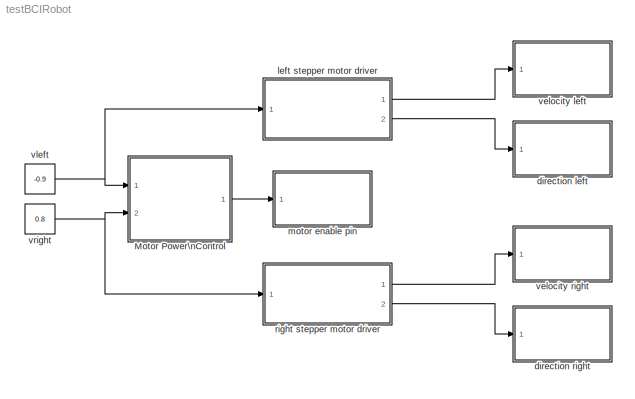
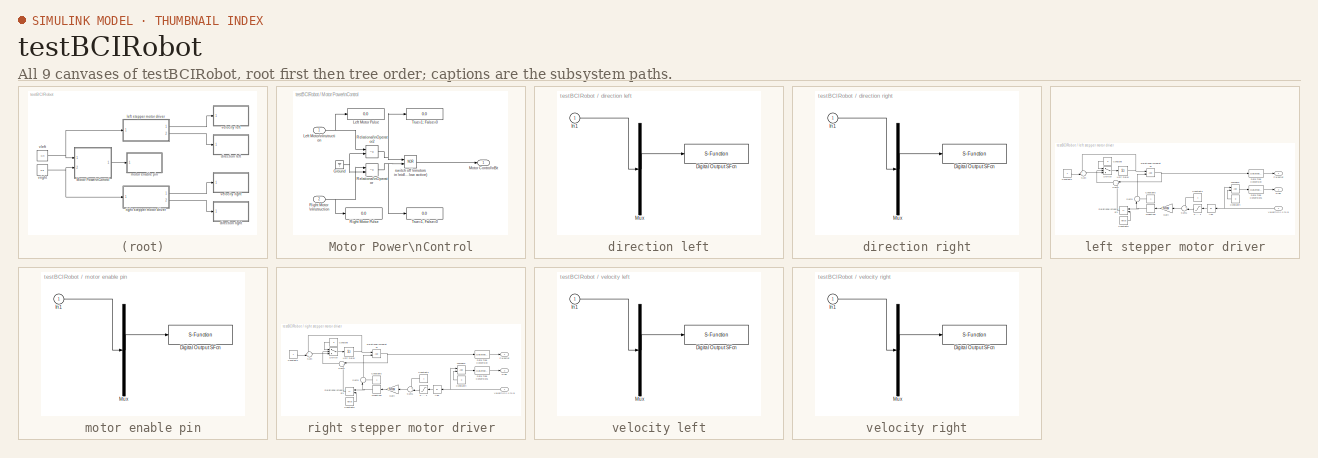
[diagram: thumbnail index - all 9 canvases of the model, root first then tree order]
MODEL testBCIRobot
KIND model
BLOCK [SubSystem] Motor Power\nControl
  Ports = [2, 1]
  RequestExecContextInheritance = off
  SID = 1
BLOCK [Ground] Motor Power\nControl/Ground
  SID = 4
BLOCK [Display] Motor Power\nControl/Left Motor Pulse
  Decimation = 1
  Ports = [1]
  SID = 5
BLOCK [Inport] Motor Power\nControl/Left Motor\nInstruction
  IconDisplay = Port number
  SID = 2
BLOCK [Outport] Motor Power\nControl/Motor Control\nBit
  IconDisplay = Port number
  SID = 12
BLOCK [RelationalOperator] Motor Power\nControl/Relational\nOperator
  InputSameDT = off
  Operator = ~=
  Ports = [2, 1]
  SID = 6
BLOCK [RelationalOperator] Motor Power\nControl/Relational\nOperator2
  InputSameDT = off
  Operator = ~=
  Ports = [2, 1]
  SID = 7
BLOCK [Display] Motor Power\nControl/Right Motor Pulse
  Decimation = 1
  Ports = [1]
  SID = 8
BLOCK [Inport] Motor Power\nControl/Right Motor \nInstruction
  IconDisplay = Port number
  Port = 2
  SID = 3
BLOCK [Display] Motor Power\nControl/True=1, False=0
  Decimation = 1
  Ports = [1]
  SID = 9
BLOCK [Display] Motor Power\nControl/True=1; False=0
  Decimation = 1
  Ports = [1]
  SID = 10
BLOCK [Logic] Motor Power\nControl/switch off \nmotors in \nidle state\n(low active)
  AllPortsSameDT = off
  Operator = NOR
  Ports = [2, 1]
  SID = 11
BLOCK [SubSystem] direction left
  Ports = [1]
  RequestExecContextInheritance = off
  SID = 13
  ShowPortLabels = none
  Tag = mcTarget_digOut
BLOCK [S-Function] direction left/Digital Output SFcn
  EnableBusSupport = off
  FunctionName = digOut_sfcn_9S12
  Parameters = sampletime, port, pins, Von, Voff
  Ports = [1]
  SFcnIsStateOwnerBlock = off
  SFunctionDeploymentMode = off
  SID = 13:2
  Tag = mcTarget_digOut
BLOCK [Inport] direction left/In1
  IconDisplay = Port number
  SID = 13:1
BLOCK [Mux] direction left/Mux
  DisplayOption = bar
  Inputs = 1
  Ports = [1, 1]
  SID = 13:3
BLOCK [SubSystem] direction right
  Ports = [1]
  RequestExecContextInheritance = off
  SID = 14
  ShowPortLabels = none
  Tag = mcTarget_digOut
BLOCK [S-Function] direction right/Digital Output SFcn
  EnableBusSupport = off
  FunctionName = digOut_sfcn_9S12
  Parameters = sampletime, port, pins, Von, Voff
  Ports = [1]
  SFcnIsStateOwnerBlock = off
  SFunctionDeploymentMode = off
  SID = 14:2
  Tag = mcTarget_digOut
BLOCK [Inport] direction right/In1
  IconDisplay = Port number
  SID = 14:1
BLOCK [Mux] direction right/Mux
  DisplayOption = bar
  Inputs = 1
  Ports = [1, 1]
  SID = 14:3
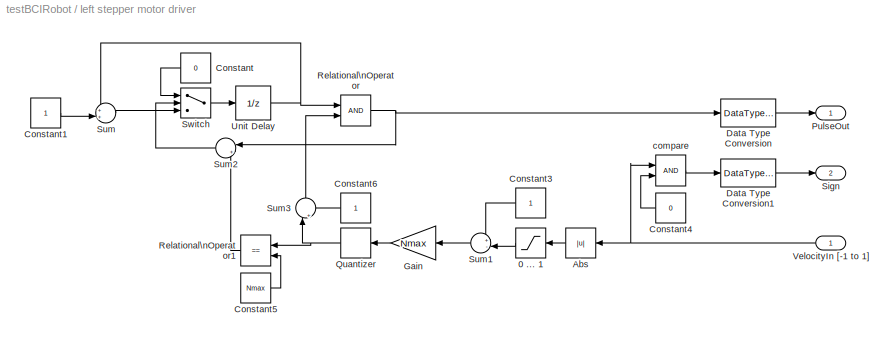
BLOCK [SubSystem] left stepper motor driver
  Ports = [1, 2]
  RequestExecContextInheritance = off
  SID = 15
BLOCK [Saturate] left stepper motor driver/0 ... 1
  InputPortMap = u0
  LowerLimit = 0
  Ports = [1, 1]
  SID = 17
  UpperLimit = 1
BLOCK [Abs] left stepper motor driver/Abs
  SID = 18
  SaturateOnIntegerOverflow = off
BLOCK [Constant] left stepper motor driver/Constant
  SID = 19
  Value = 0
BLOCK [Constant] left stepper motor driver/Constant1
  SID = 20
BLOCK [Constant] left stepper motor driver/Constant3
  SID = 21
BLOCK [Constant] left stepper motor driver/Constant4
  SID = 22
  Value = 0
BLOCK [Constant] left stepper motor driver/Constant5
  SID = 23
  Value = Nmax
BLOCK [Constant] left stepper motor driver/Constant6
  SID = 24
BLOCK [DataTypeConversion] left stepper motor driver/Data Type Conversion
  OutDataTypeStr = double
  SID = 25
BLOCK [DataTypeConversion] left stepper motor driver/Data Type Conversion1
  OutDataTypeStr = double
  SID = 26
BLOCK [Gain] left stepper motor driver/Gain
  Gain = Nmax
  SID = 27
BLOCK [Outport] left stepper motor driver/PulseOut
  IconDisplay = Port number
  SID = 38
BLOCK [Quantizer] left stepper motor driver/Quantizer
  QuantizationInterval = dQ
  SID = 28
BLOCK [RelationalOperator] left stepper motor driver/Relational\nOperator
  InputSameDT = off
  OutDataTypeStr = uint(8)
  Ports = [2, 1]
  SID = 29
BLOCK [RelationalOperator] left stepper motor driver/Relational\nOperator1
  InputSameDT = off
  Operator = ==
  OutDataTypeStr = uint(8)
  Ports = [2, 1]
  SID = 30
BLOCK [Outport] left stepper motor driver/Sign
  IconDisplay = Port number
  Port = 2
  SID = 39
BLOCK [Sum] left stepper motor driver/Sum
  IconShape = round
  InputSameDT = off
  Inputs = ++|
  OutDataTypeStr = Inherit: Inherit via internal rule
  Ports = [2, 1]
  SID = 31
  SaturateOnIntegerOverflow = off
BLOCK [Sum] left stepper motor driver/Sum1
  IconShape = round
  InputSameDT = off
  Inputs = +-|
  OutDataTypeStr = Inherit: Inherit via internal rule
  Ports = [2, 1]
  SID = 32
  SaturateOnIntegerOverflow = off
BLOCK [Sum] left stepper motor driver/Sum2
  IconShape = round
  InputSameDT = off
  Inputs = |++
  OutDataTypeStr = Inherit: Inherit via internal rule
  Ports = [2, 1]
  SID = 33
  SaturateOnIntegerOverflow = off
BLOCK [Sum] left stepper motor driver/Sum3
  IconShape = round
  InputSameDT = off
  Inputs = |++
  OutDataTypeStr = Inherit: Inherit via internal rule
  Ports = [2, 1]
  SID = 34
  SaturateOnIntegerOverflow = off
BLOCK [Switch] left stepper motor driver/Switch
  Criteria = u2 > Threshold
  InputSameDT = off
  SID = 35
  SaturateOnIntegerOverflow = off
BLOCK [UnitDelay] left stepper motor driver/Unit Delay
  SID = 36
  SampleTime = Tpulse
BLOCK [Inport] left stepper motor driver/VelocityIn [-1 to 1]
  IconDisplay = Port number
  SID = 16
BLOCK [RelationalOperator] left stepper motor driver/compare
  InputSameDT = off
  OutDataTypeStr = uint(8)
  Ports = [2, 1]
  SID = 37
BLOCK [SubSystem] motor enable pin
  Ports = [1]
  RequestExecContextInheritance = off
  SID = 40
  ShowPortLabels = none
  Tag = mcTarget_digOut
BLOCK [S-Function] motor enable pin/Digital Output SFcn
  EnableBusSupport = off
  FunctionName = digOut_sfcn_9S12
  Parameters = sampletime, port, pins, Von, Voff
  Ports = [1]
  SFcnIsStateOwnerBlock = off
  SFunctionDeploymentMode = off
  SID = 40:2
  Tag = mcTarget_digOut
BLOCK [Inport] motor enable pin/In1
  IconDisplay = Port number
  SID = 40:1
BLOCK [Mux] motor enable pin/Mux
  DisplayOption = bar
  Inputs = 1
  Ports = [1, 1]
  SID = 40:3
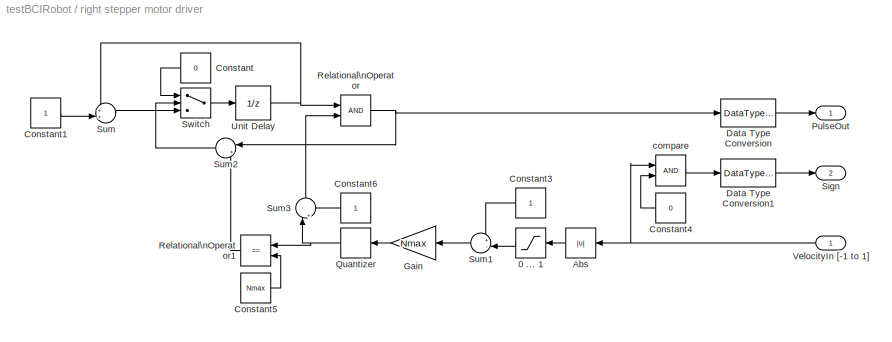
BLOCK [SubSystem] right stepper motor driver
  Ports = [1, 2]
  RequestExecContextInheritance = off
  SID = 41
BLOCK [Saturate] right stepper motor driver/0 ... 1
  InputPortMap = u0
  LowerLimit = 0
  Ports = [1, 1]
  SID = 43
  UpperLimit = 1
BLOCK [Abs] right stepper motor driver/Abs
  SID = 44
  SaturateOnIntegerOverflow = off
BLOCK [Constant] right stepper motor driver/Constant
  SID = 45
  Value = 0
BLOCK [Constant] right stepper motor driver/Constant1
  SID = 46
BLOCK [Constant] right stepper motor driver/Constant3
  SID = 47
BLOCK [Constant] right stepper motor driver/Constant4
  SID = 48
  Value = 0
BLOCK [Constant] right stepper motor driver/Constant5
  SID = 49
  Value = Nmax
BLOCK [Constant] right stepper motor driver/Constant6
  SID = 50
BLOCK [DataTypeConversion] right stepper motor driver/Data Type Conversion
  OutDataTypeStr = double
  SID = 51
BLOCK [DataTypeConversion] right stepper motor driver/Data Type Conversion1
  OutDataTypeStr = double
  SID = 52
BLOCK [Gain] right stepper motor driver/Gain
  Gain = Nmax
  SID = 53
BLOCK [Outport] right stepper motor driver/PulseOut
  IconDisplay = Port number
  SID = 64
BLOCK [Quantizer] right stepper motor driver/Quantizer
  QuantizationInterval = dQ
  SID = 54
BLOCK [RelationalOperator] right stepper motor driver/Relational\nOperator
  InputSameDT = off
  OutDataTypeStr = uint(8)
  Ports = [2, 1]
  SID = 55
BLOCK [RelationalOperator] right stepper motor driver/Relational\nOperator1
  InputSameDT = off
  Operator = ==
  OutDataTypeStr = uint(8)
  Ports = [2, 1]
  SID = 56
BLOCK [Outport] right stepper motor driver/Sign
  IconDisplay = Port number
  Port = 2
  SID = 65
BLOCK [Sum] right stepper motor driver/Sum
  IconShape = round
  InputSameDT = off
  Inputs = ++|
  OutDataTypeStr = Inherit: Inherit via internal rule
  Ports = [2, 1]
  SID = 57
  SaturateOnIntegerOverflow = off
BLOCK [Sum] right stepper motor driver/Sum1
  IconShape = round
  InputSameDT = off
  Inputs = +-|
  OutDataTypeStr = Inherit: Inherit via internal rule
  Ports = [2, 1]
  SID = 58
  SaturateOnIntegerOverflow = off
BLOCK [Sum] right stepper motor driver/Sum2
  IconShape = round
  InputSameDT = off
  Inputs = |++
  OutDataTypeStr = Inherit: Inherit via internal rule
  Ports = [2, 1]
  SID = 59
  SaturateOnIntegerOverflow = off
BLOCK [Sum] right stepper motor driver/Sum3
  IconShape = round
  InputSameDT = off
  Inputs = |++
  OutDataTypeStr = Inherit: Inherit via internal rule
  Ports = [2, 1]
  SID = 60
  SaturateOnIntegerOverflow = off
BLOCK [Switch] right stepper motor driver/Switch
  Criteria = u2 > Threshold
  InputSameDT = off
  SID = 61
  SaturateOnIntegerOverflow = off
BLOCK [UnitDelay] right stepper motor driver/Unit Delay
  SID = 62
  SampleTime = Tpulse
BLOCK [Inport] right stepper motor driver/VelocityIn [-1 to 1]
  IconDisplay = Port number
  SID = 42
BLOCK [RelationalOperator] right stepper motor driver/compare
  InputSameDT = off
  OutDataTypeStr = uint(8)
  Ports = [2, 1]
  SID = 63
BLOCK [SubSystem] velocity left
  Ports = [1]
  RequestExecContextInheritance = off
  SID = 66
  ShowPortLabels = none
  Tag = mcTarget_digOut
BLOCK [S-Function] velocity left/Digital Output SFcn
  EnableBusSupport = off
  FunctionName = digOut_sfcn_9S12
  Parameters = sampletime, port, pins, Von, Voff
  Ports = [1]
  SFcnIsStateOwnerBlock = off
  SFunctionDeploymentMode = off
  SID = 66:2
  Tag = mcTarget_digOut
BLOCK [Inport] velocity left/In1
  IconDisplay = Port number
  SID = 66:1
BLOCK [Mux] velocity left/Mux
  DisplayOption = bar
  Inputs = 1
  Ports = [1, 1]
  SID = 66:3
BLOCK [SubSystem] velocity right
  Ports = [1]
  RequestExecContextInheritance = off
  SID = 67
  ShowPortLabels = none
  Tag = mcTarget_digOut
BLOCK [S-Function] velocity right/Digital Output SFcn
  EnableBusSupport = off
  FunctionName = digOut_sfcn_9S12
  Parameters = sampletime, port, pins, Von, Voff
  Ports = [1]
  SFcnIsStateOwnerBlock = off
  SFunctionDeploymentMode = off
  SID = 67:2
  Tag = mcTarget_digOut
BLOCK [Inport] velocity right/In1
  IconDisplay = Port number
  SID = 67:1
BLOCK [Mux] velocity right/Mux
  DisplayOption = bar
  Inputs = 1
  Ports = [1, 1]
  SID = 67:3
BLOCK [Constant] vleft
  SID = 68
  Value = -0.9
BLOCK [Constant] vright
  SID = 69
  Value = 0.8
NET Motor Power\nControl/Ground:1 -> Motor Power\nControl/Relational\nOperator2:2, Motor Power\nControl/Relational\nOperator:2
NET Motor Power\nControl/Left Motor\nInstruction:1 -> Motor Power\nControl/Left Motor Pulse:1, Motor Power\nControl/Relational\nOperator2:1
NET Motor Power\nControl/Relational\nOperator2:1 -> Motor Power\nControl/True=1; False=0:1, Motor Power\nControl/switch off \nmotors in \nidle state\n(low active):1
NET Motor Power\nControl/Relational\nOperator:1 -> Motor Power\nControl/True=1, False=0:1, Motor Power\nControl/switch off \nmotors in \nidle state\n(low active):2
NET Motor Power\nControl/Right Motor \nInstruction:1 -> Motor Power\nControl/Relational\nOperator:1, Motor Power\nControl/Right Motor Pulse:1
LINE Motor Power\nControl/switch off \nmotors in \nidle state\n(low active):1 -> Motor Power\nControl/Motor Control\nBit:1
LINE Motor Power\nControl:1 -> motor enable pin:1
LINE direction left/In1:1 -> direction left/Mux:1
LINE direction left/Mux:1 -> direction left/Digital Output SFcn:1
LINE direction right/In1:1 -> direction right/Mux:1
LINE direction right/Mux:1 -> direction right/Digital Output SFcn:1
LINE left stepper motor driver/0 ... 1:1 -> left stepper motor driver/Sum1:2
LINE left stepper motor driver/Abs:1 -> left stepper motor driver/0 ... 1:1
LINE left stepper motor driver/Constant1:1 -> left stepper motor driver/Sum:2
LINE left stepper motor driver/Constant3:1 -> left stepper motor driver/Sum1:1
LINE left stepper motor driver/Constant4:1 -> left stepper motor driver/compare:2
LINE left stepper motor driver/Constant5:1 -> left stepper motor driver/Relational\nOperator1:2
LINE left stepper motor driver/Constant6:1 -> left stepper motor driver/Sum3:2
LINE left stepper motor driver/Constant:1 -> left stepper motor driver/Switch:1
LINE left stepper motor driver/Data Type Conversion1:1 -> left stepper motor driver/Sign:1
LINE left stepper motor driver/Data Type Conversion:1 -> left stepper motor driver/PulseOut:1
LINE left stepper motor driver/Gain:1 -> left stepper motor driver/Quantizer:1
NET left stepper motor driver/Quantizer:1 -> left stepper motor driver/Relational\nOperator1:1, left stepper motor driver/Sum3:1
LINE left stepper motor driver/Relational\nOperator1:1 -> left stepper motor driver/Sum2:2
NET left stepper motor driver/Relational\nOperator:1 -> left stepper motor driver/Data Type Conversion:1, left stepper motor driver/Sum2:1
LINE left stepper motor driver/Sum1:1 -> left stepper motor driver/Gain:1
LINE left stepper motor driver/Sum2:1 -> left stepper motor driver/Switch:2
LINE left stepper motor driver/Sum3:1 -> left stepper motor driver/Relational\nOperator:2
LINE left stepper motor driver/Sum:1 -> left stepper motor driver/Switch:3
LINE left stepper motor driver/Switch:1 -> left stepper motor driver/Unit Delay:1
NET left stepper motor driver/Unit Delay:1 -> left stepper motor driver/Relational\nOperator:1, left stepper motor driver/Sum:1
NET left stepper motor driver/VelocityIn [-1 to 1]:1 -> left stepper motor driver/Abs:1, left stepper motor driver/compare:1
LINE left stepper motor driver/compare:1 -> left stepper motor driver/Data Type Conversion1:1
LINE left stepper motor driver:1 -> velocity left:1
LINE left stepper motor driver:2 -> direction left:1
LINE motor enable pin/In1:1 -> motor enable pin/Mux:1
LINE motor enable pin/Mux:1 -> motor enable pin/Digital Output SFcn:1
LINE right stepper motor driver/0 ... 1:1 -> right stepper motor driver/Sum1:2
LINE right stepper motor driver/Abs:1 -> right stepper motor driver/0 ... 1:1
LINE right stepper motor driver/Constant1:1 -> right stepper motor driver/Sum:2
LINE right stepper motor driver/Constant3:1 -> right stepper motor driver/Sum1:1
LINE right stepper motor driver/Constant4:1 -> right stepper motor driver/compare:2
LINE right stepper motor driver/Constant5:1 -> right stepper motor driver/Relational\nOperator1:2
LINE right stepper motor driver/Constant6:1 -> right stepper motor driver/Sum3:2
LINE right stepper motor driver/Constant:1 -> right stepper motor driver/Switch:1
LINE right stepper motor driver/Data Type Conversion1:1 -> right stepper motor driver/Sign:1
LINE right stepper motor driver/Data Type Conversion:1 -> right stepper motor driver/PulseOut:1
LINE right stepper motor driver/Gain:1 -> right stepper motor driver/Quantizer:1
NET right stepper motor driver/Quantizer:1 -> right stepper motor driver/Relational\nOperator1:1, right stepper motor driver/Sum3:1
LINE right stepper motor driver/Relational\nOperator1:1 -> right stepper motor driver/Sum2:2
NET right stepper motor driver/Relational\nOperator:1 -> right stepper motor driver/Data Type Conversion:1, right stepper motor driver/Sum2:1
LINE right stepper motor driver/Sum1:1 -> right stepper motor driver/Gain:1
LINE right stepper motor driver/Sum2:1 -> right stepper motor driver/Switch:2
LINE right stepper motor driver/Sum3:1 -> right stepper motor driver/Relational\nOperator:2
LINE right stepper motor driver/Sum:1 -> right stepper motor driver/Switch:3
LINE right stepper motor driver/Switch:1 -> right stepper motor driver/Unit Delay:1
NET right stepper motor driver/Unit Delay:1 -> right stepper motor driver/Relational\nOperator:1, right stepper motor driver/Sum:1
NET right stepper motor driver/VelocityIn [-1 to 1]:1 -> right stepper motor driver/Abs:1, right stepper motor driver/compare:1
LINE right stepper motor driver/compare:1 -> right stepper motor driver/Data Type Conversion1:1
LINE right stepper motor driver:1 -> velocity right:1
LINE right stepper motor driver:2 -> direction right:1
LINE velocity left/In1:1 -> velocity left/Mux:1
LINE velocity left/Mux:1 -> velocity left/Digital Output SFcn:1
LINE velocity right/In1:1 -> velocity right/Mux:1
LINE velocity right/Mux:1 -> velocity right/Digital Output SFcn:1
NET vleft:1 -> Motor Power\nControl:1, left stepper motor driver:1
NET vright:1 -> Motor Power\nControl:2, right stepper motor driver:1
note: NET lines group one-source signal fan-out (src -> all destinations, sorted); 1:1 wires keep LINE
